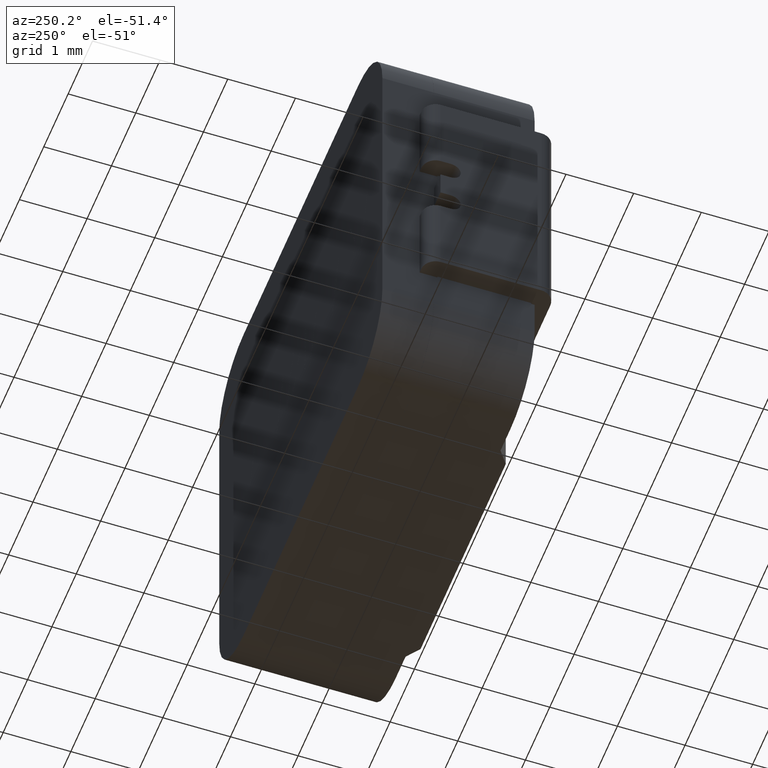
[diagram: clean part render]
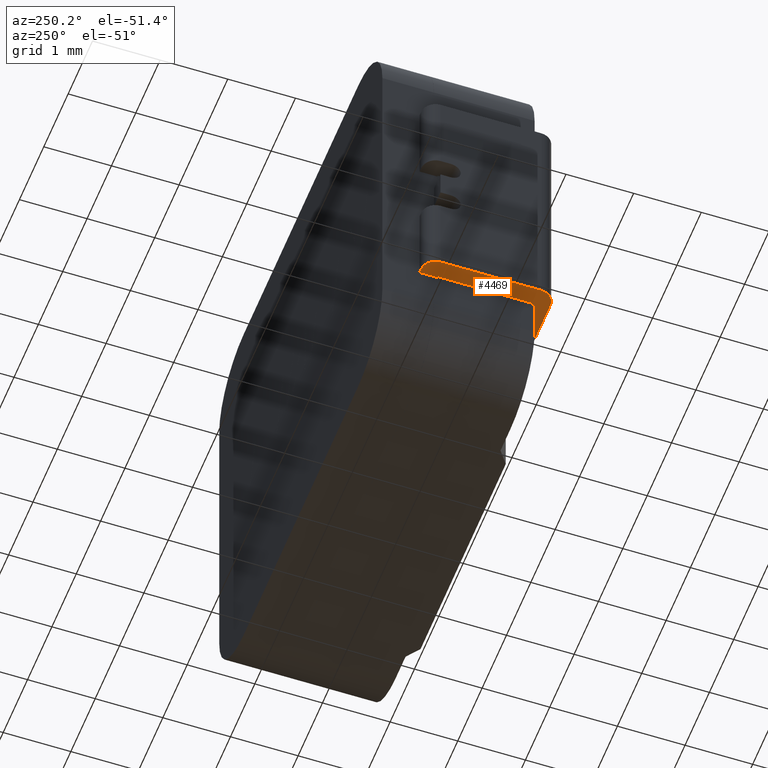
[diagram: same view with one face highlighted and labeled with its STEP entity id]
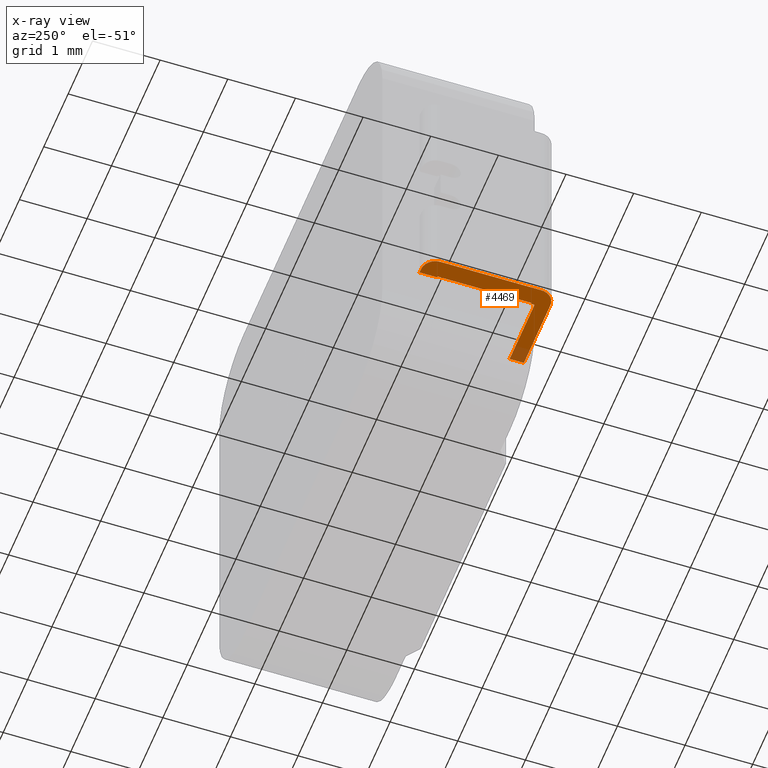
[diagram: x-ray of the same camera — body ghosted, the highlighted face saturated]
A machine part, auxiliary view. The second image highlights one B-rep face of the part: STEP entity #4469.
The next image is the same camera in x-ray: the body ghosted, the highlighted face saturated — about 7% of this face is hidden behind the body in this view.
In plain terms, the highlighted planar face has unit normal (0, 0, -1).
Its self-contained STEP definition (entity closure, byte-faithful):
#13 = CARTESIAN_POINT ( 'NONE',  ( -3.350000000000000089, 2.399999999999999911, -1.750000000000000000 ) ) ;
#74 = ORIENTED_EDGE ( 'NONE', *, *, #5936, .T. ) ;
#186 = CIRCLE ( 'NONE', #6782, 0.2100000000000001310 ) ;
#198 = AXIS2_PLACEMENT_3D ( 'NONE', #770, #4392, #2895 ) ;
#282 = LINE ( 'NONE', #5671, #3071 ) ;
#315 = ORIENTED_EDGE ( 'NONE', *, *, #1786, .T. ) ;
#354 = CARTESIAN_POINT ( 'NONE',  ( -3.625000000000001776, 0.1999999999999997335, -1.750000000000000000 ) ) ;
#403 = CARTESIAN_POINT ( 'NONE',  ( -3.365000000000001545, 1.589999999999999858, -1.750000000000000000 ) ) ;
#478 = CARTESIAN_POINT ( 'NONE',  ( -3.415000000000001368, 1.849999999999999867, -1.750000000000000000 ) ) ;
#497 = CARTESIAN_POINT ( 'NONE',  ( -3.350000000000000089, 0.1999999999999996503, -1.750000000000000000 ) ) ;
#557 = DIRECTION ( 'NONE',  ( -1.000000000000000000, 0.0000000000000000000, 0.0000000000000000000 ) ) ;
#688 = DIRECTION ( 'NONE',  ( -1.000000000000000000, 0.0000000000000000000, 0.0000000000000000000 ) ) ;
#707 = VECTOR ( 'NONE', #5912, 1000.000000000000000 ) ;
#720 = CARTESIAN_POINT ( 'NONE',  ( -3.625000000000001776, 0.1499999999999997446, -1.750000000000000000 ) ) ;
#752 = VECTOR ( 'NONE', #6530, 1000.000000000000000 ) ;
#770 = CARTESIAN_POINT ( 'NONE',  ( 0.0000000000000000000, 0.0000000000000000000, -1.750000000000000000 ) ) ;
#783 = CARTESIAN_POINT ( 'NONE',  ( 2.168404344971008868E-15, 1.640999999999999792, -1.750000000000000000 ) ) ;
#884 = LINE ( 'NONE', #2667, #3426 ) ;
#908 = EDGE_CURVE ( 'NONE', #5299, #3949, #4671, .T. ) ;
#929 = VERTEX_POINT ( 'NONE', #2091 ) ;
#972 = DIRECTION ( 'NONE',  ( 1.000000000000000000, 0.0000000000000000000, 0.0000000000000000000 ) ) ;
#996 = ORIENTED_EDGE ( 'NONE', *, *, #2296, .F. ) ;
#1254 = VERTEX_POINT ( 'NONE', #3273 ) ;
#1400 = EDGE_CURVE ( 'NONE', #2042, #5305, #4718, .T. ) ;
#1528 = VECTOR ( 'NONE', #688, 1000.000000000000000 ) ;
#1671 = VERTEX_POINT ( 'NONE', #4645 ) ;
#1731 = VERTEX_POINT ( 'NONE', #497 ) ;
#1774 = VECTOR ( 'NONE', #6310, 1000.000000000000000 ) ;
#1786 = EDGE_CURVE ( 'NONE', #3432, #3875, #4292, .T. ) ;
#2015 = DIRECTION ( 'NONE',  ( -0.0000000000000000000, -0.0000000000000000000, 1.000000000000000000 ) ) ;
#2042 = VERTEX_POINT ( 'NONE', #4606 ) ;
#2073 = CARTESIAN_POINT ( 'NONE',  ( -2.325000000000001510, 1.589999999999999858, -1.750000000000000000 ) ) ;
#2091 = CARTESIAN_POINT ( 'NONE',  ( -3.625000000000001332, 1.639999999999999902, -1.750000000000000000 ) ) ;
#2092 = ORIENTED_EDGE ( 'NONE', *, *, #5977, .F. ) ;
#2104 = VERTEX_POINT ( 'NONE', #478 ) ;
#2177 = LINE ( 'NONE', #2839, #707 ) ;
#2190 = EDGE_CURVE ( 'NONE', #1254, #3875, #3654, .T. ) ;
#2219 = LINE ( 'NONE', #4005, #2792 ) ;
#2226 = DIRECTION ( 'NONE',  ( -0.0000000000000000000, 1.000000000000000000, 0.0000000000000000000 ) ) ;
#2296 = EDGE_CURVE ( 'NONE', #5290, #2104, #5032, .T. ) ;
#2353 = EDGE_LOOP ( 'NONE', ( #6494, #2092, #3403, #3067, #5465, #6553, #996, #3787, #2535, #5207, #315, #5873, #74, #5417, #6711, #3945 ) ) ;
#2517 = DIRECTION ( 'NONE',  ( -0.0000000000000000000, 1.000000000000000000, 0.0000000000000000000 ) ) ;
#2520 = DIRECTION ( 'NONE',  ( 1.000000000000000000, 0.0000000000000000000, 0.0000000000000000000 ) ) ;
#2535 = ORIENTED_EDGE ( 'NONE', *, *, #1400, .F. ) ;
#2594 = DIRECTION ( 'NONE',  ( -0.0000000000000000000, -0.0000000000000000000, 1.000000000000000000 ) ) ;
#2667 = CARTESIAN_POINT ( 'NONE',  ( -2.325000000000001954, -0.06000000000000059452, -1.750000000000000000 ) ) ;
#2707 = CARTESIAN_POINT ( 'NONE',  ( 2.168404344971008868E-15, 1.639999999999999902, -1.750000000000000000 ) ) ;
#2792 = VECTOR ( 'NONE', #2517, 1000.000000000000000 ) ;
#2821 = EDGE_CURVE ( 'NONE', #3432, #2042, #2177, .T. ) ;
#2839 = CARTESIAN_POINT ( 'NONE',  ( -3.345000000000000195, 1.640999999999999792, -1.750000000000000000 ) ) ;
#2858 = EDGE_CURVE ( 'NONE', #3949, #3102, #5507, .T. ) ;
#2873 = VECTOR ( 'NONE', #4452, 1000.000000000000000 ) ;
#2895 = DIRECTION ( 'NONE',  ( 1.000000000000000000, 0.0000000000000000000, 0.0000000000000000000 ) ) ;
#3046 = CARTESIAN_POINT ( 'NONE',  ( -3.415000000000001812, 0.1499999999999997446, -1.750000000000000000 ) ) ;
#3058 = LINE ( 'NONE', #6377, #3623 ) ;
#3067 = ORIENTED_EDGE ( 'NONE', *, *, #908, .F. ) ;
#3071 = VECTOR ( 'NONE', #4156, 1000.000000000000000 ) ;
#3102 = VERTEX_POINT ( 'NONE', #3270 ) ;
#3165 = EDGE_CURVE ( 'NONE', #5305, #5290, #3058, .T. ) ;
#3215 = CARTESIAN_POINT ( 'NONE',  ( -2.325000000000001954, 0.1499999999999999667, -1.750000000000000000 ) ) ;
#3220 = FACE_OUTER_BOUND ( 'NONE', #2353, .T. ) ;
#3270 = CARTESIAN_POINT ( 'NONE',  ( -2.325000000000001954, -0.06000000000000059452, -1.750000000000000000 ) ) ;
#3273 = CARTESIAN_POINT ( 'NONE',  ( -3.350000000000000089, 1.589999999999999858, -1.750000000000000000 ) ) ;
#3343 = CARTESIAN_POINT ( 'NONE',  ( -3.350000000000000089, 1.640999999999999792, -1.750000000000000000 ) ) ;
#3345 = LINE ( 'NONE', #6672, #5689 ) ;
#3403 = ORIENTED_EDGE ( 'NONE', *, *, #2858, .F. ) ;
#3425 = EDGE_CURVE ( 'NONE', #2104, #929, #186, .T. ) ;
#3426 = VECTOR ( 'NONE', #4770, 1000.000000000000000 ) ;
#3432 = VERTEX_POINT ( 'NONE', #4470 ) ;
#3576 = VERTEX_POINT ( 'NONE', #3215 ) ;
#3623 = VECTOR ( 'NONE', #2226, 1000.000000000000000 ) ;
#3654 = LINE ( 'NONE', #13, #1774 ) ;
#3787 = ORIENTED_EDGE ( 'NONE', *, *, #3165, .F. ) ;
#3858 = DIRECTION ( 'NONE',  ( -1.000000000000000000, 0.0000000000000000000, 0.0000000000000000000 ) ) ;
#3875 = VERTEX_POINT ( 'NONE', #4433 ) ;
#3892 = CARTESIAN_POINT ( 'NONE',  ( -3.625000000000001332, 1.849999999999999867, -1.750000000000000000 ) ) ;
#3911 = LINE ( 'NONE', #3892, #2873 ) ;
#3916 = EDGE_CURVE ( 'NONE', #929, #5299, #3911, .T. ) ;
#3918 = PLANE ( 'NONE',  #198 ) ;
#3945 = ORIENTED_EDGE ( 'NONE', *, *, #3972, .F. ) ;
#3949 = VERTEX_POINT ( 'NONE', #5029 ) ;
#3972 = EDGE_CURVE ( 'NONE', #4624, #1731, #2219, .T. ) ;
#4005 = CARTESIAN_POINT ( 'NONE',  ( -3.350000000000000089, 2.399999999999999911, -1.750000000000000000 ) ) ;
#4156 = DIRECTION ( 'NONE',  ( -2.270580465938228980E-16, -1.000000000000000000, 0.0000000000000000000 ) ) ;
#4211 = VECTOR ( 'NONE', #3858, 1000.000000000000000 ) ;
#4292 = LINE ( 'NONE', #2707, #1528 ) ;
#4384 = CARTESIAN_POINT ( 'NONE',  ( -3.350000000000000089, 0.1499999999999999667, -1.750000000000000000 ) ) ;
#4392 = DIRECTION ( 'NONE',  ( 0.0000000000000000000, 0.0000000000000000000, -1.000000000000000000 ) ) ;
#4433 = CARTESIAN_POINT ( 'NONE',  ( -3.350000000000000089, 1.639999999999999902, -1.750000000000000000 ) ) ;
#4452 = DIRECTION ( 'NONE',  ( -2.270580465938228980E-16, -1.000000000000000000, 0.0000000000000000000 ) ) ;
#4469 = ADVANCED_FACE ( 'NONE', ( #3220 ), #3918, .T. ) ;
#4470 = CARTESIAN_POINT ( 'NONE',  ( -3.345000000000000195, 1.639999999999999902, -1.750000000000000000 ) ) ;
#4567 = DIRECTION ( 'NONE',  ( -1.000000000000000000, 1.936075308009828246E-17, 0.0000000000000000000 ) ) ;
#4585 = LINE ( 'NONE', #354, #5589 ) ;
#4606 = CARTESIAN_POINT ( 'NONE',  ( -3.345000000000000195, 1.640999999999999792, -1.750000000000000000 ) ) ;
#4624 = VERTEX_POINT ( 'NONE', #4384 ) ;
#4645 = CARTESIAN_POINT ( 'NONE',  ( -3.365000000000001990, 0.1999999999999996780, -1.750000000000000000 ) ) ;
#4671 = CIRCLE ( 'NONE', #6487, 0.2100000000000001310 ) ;
#4718 = LINE ( 'NONE', #783, #752 ) ;
#4770 = DIRECTION ( 'NONE',  ( 0.0000000000000000000, 1.000000000000000000, 0.0000000000000000000 ) ) ;
#4911 = DIRECTION ( 'NONE',  ( 1.000000000000000000, -2.293504595642413567E-16, 0.0000000000000000000 ) ) ;
#5029 = CARTESIAN_POINT ( 'NONE',  ( -3.415000000000001812, -0.06000000000000033779, -1.750000000000000000 ) ) ;
#5032 = LINE ( 'NONE', #5461, #4211 ) ;
#5207 = ORIENTED_EDGE ( 'NONE', *, *, #2821, .F. ) ;
#5290 = VERTEX_POINT ( 'NONE', #5360 ) ;
#5299 = VERTEX_POINT ( 'NONE', #720 ) ;
#5305 = VERTEX_POINT ( 'NONE', #3343 ) ;
#5360 = CARTESIAN_POINT ( 'NONE',  ( -3.350000000000000089, 1.849999999999999867, -1.750000000000000000 ) ) ;
#5417 = ORIENTED_EDGE ( 'NONE', *, *, #6511, .T. ) ;
#5448 = LINE ( 'NONE', #2073, #5782 ) ;
#5461 = CARTESIAN_POINT ( 'NONE',  ( -2.325000000000001510, 1.849999999999999867, -1.750000000000000000 ) ) ;
#5465 = ORIENTED_EDGE ( 'NONE', *, *, #3916, .F. ) ;
#5507 = LINE ( 'NONE', #6457, #6341 ) ;
#5589 = VECTOR ( 'NONE', #6031, 1000.000000000000000 ) ;
#5671 = CARTESIAN_POINT ( 'NONE',  ( -3.365000000000001545, 1.849999999999999867, -1.750000000000000000 ) ) ;
#5679 = EDGE_CURVE ( 'NONE', #3576, #4624, #3345, .T. ) ;
#5689 = VECTOR ( 'NONE', #4567, 1000.000000000000000 ) ;
#5782 = VECTOR ( 'NONE', #557, 1000.000000000000000 ) ;
#5873 = ORIENTED_EDGE ( 'NONE', *, *, #2190, .F. ) ;
#5912 = DIRECTION ( 'NONE',  ( 0.0000000000000000000, 1.000000000000000000, 0.0000000000000000000 ) ) ;
#5936 = EDGE_CURVE ( 'NONE', #1254, #6416, #5448, .T. ) ;
#5977 = EDGE_CURVE ( 'NONE', #3102, #3576, #884, .T. ) ;
#6031 = DIRECTION ( 'NONE',  ( 1.000000000000000000, -2.293504595642413567E-16, 0.0000000000000000000 ) ) ;
#6107 = CARTESIAN_POINT ( 'NONE',  ( -3.415000000000001368, 1.639999999999999902, -1.750000000000000000 ) ) ;
#6310 = DIRECTION ( 'NONE',  ( -0.0000000000000000000, 1.000000000000000000, 0.0000000000000000000 ) ) ;
#6341 = VECTOR ( 'NONE', #4911, 1000.000000000000000 ) ;
#6377 = CARTESIAN_POINT ( 'NONE',  ( -3.350000000000000089, 2.399999999999999911, -1.750000000000000000 ) ) ;
#6416 = VERTEX_POINT ( 'NONE', #403 ) ;
#6457 = CARTESIAN_POINT ( 'NONE',  ( -3.625000000000001776, -0.06000000000000029615, -1.750000000000000000 ) ) ;
#6487 = AXIS2_PLACEMENT_3D ( 'NONE', #3046, #2594, #2520 ) ;
#6494 = ORIENTED_EDGE ( 'NONE', *, *, #5679, .F. ) ;
#6511 = EDGE_CURVE ( 'NONE', #6416, #1671, #282, .T. ) ;
#6530 = DIRECTION ( 'NONE',  ( -1.000000000000000000, 0.0000000000000000000, 0.0000000000000000000 ) ) ;
#6553 = ORIENTED_EDGE ( 'NONE', *, *, #3425, .F. ) ;
#6563 = EDGE_CURVE ( 'NONE', #1671, #1731, #4585, .T. ) ;
#6672 = CARTESIAN_POINT ( 'NONE',  ( -3.350000000000000089, 0.1499999999999999944, -1.750000000000000000 ) ) ;
#6711 = ORIENTED_EDGE ( 'NONE', *, *, #6563, .T. ) ;
#6782 = AXIS2_PLACEMENT_3D ( 'NONE', #6107, #2015, #972 ) ;